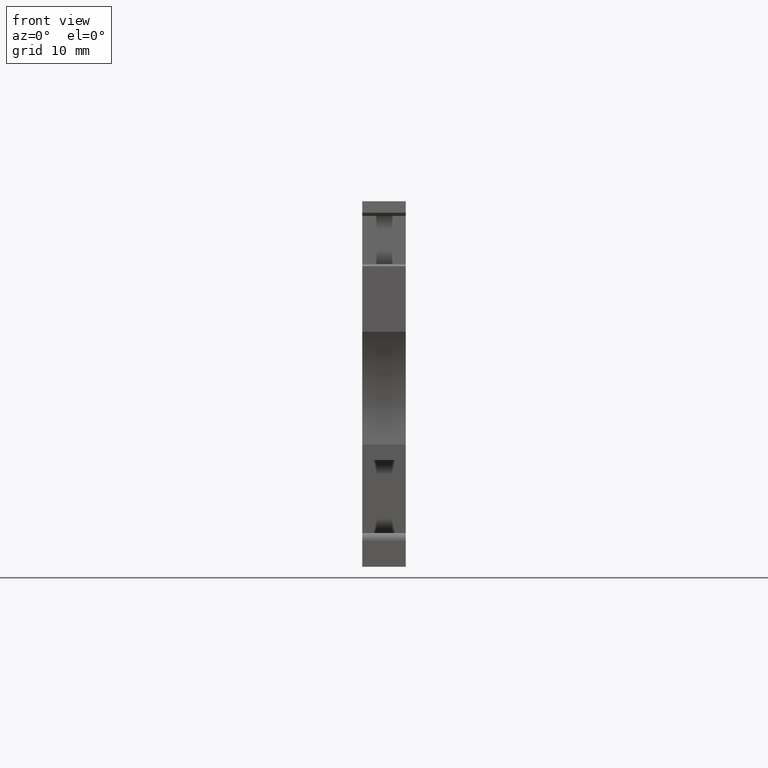
[diagram: clean part render]
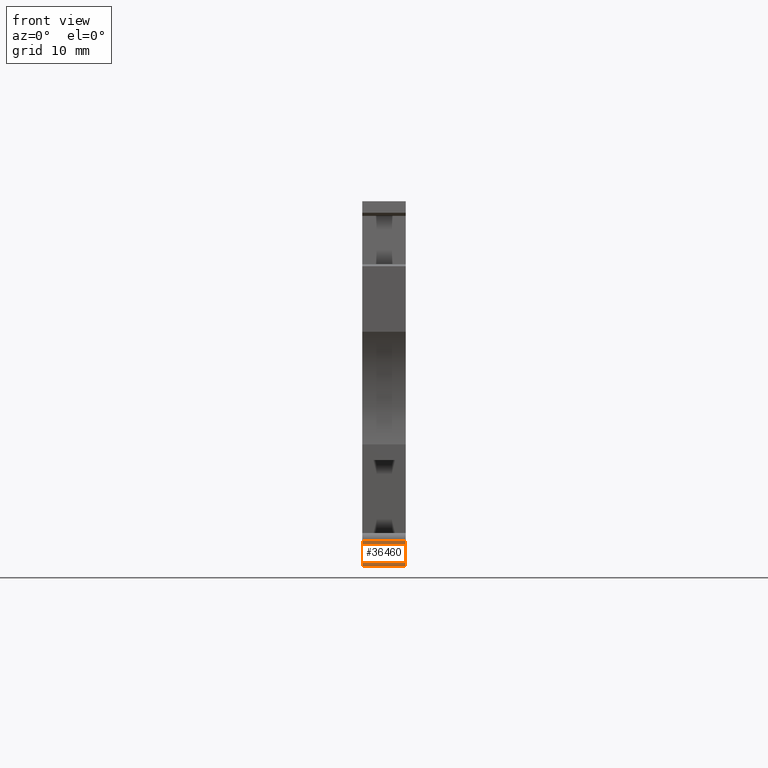
[diagram: same view with one face highlighted and labeled with its STEP entity id]
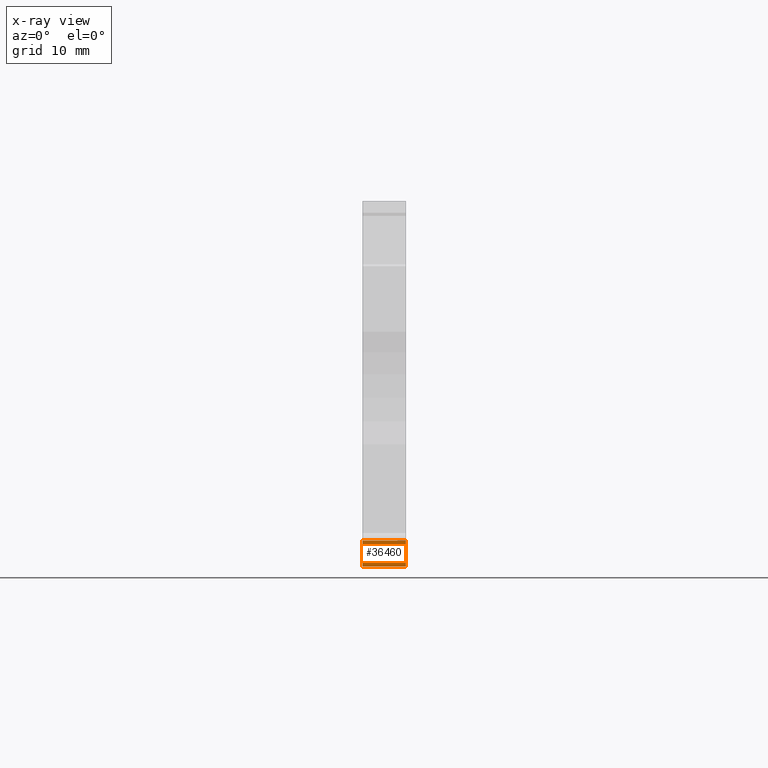
[diagram: x-ray of the same camera — body ghosted, the highlighted face saturated]
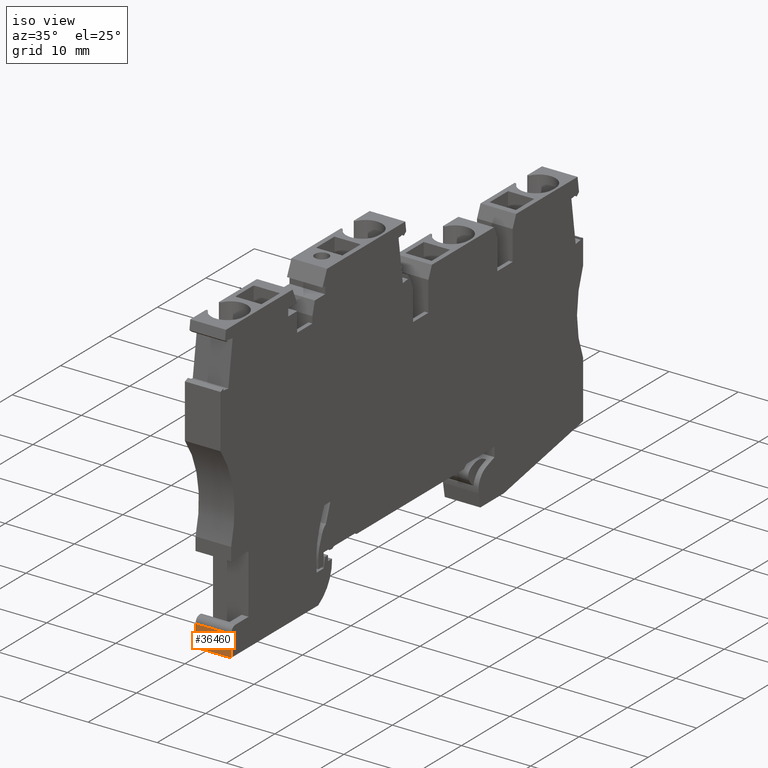
[diagram: same view with one face highlighted and labeled with its STEP entity id]
A machine part, front view. The second image highlights one B-rep face of the part: STEP entity #36460.
The next image is the same camera in x-ray: the body ghosted, the highlighted face saturated — about 0% of this face is hidden behind the body in this view.
A second angle (iso view) of the same face is appended — the face is thin or edge-on in the first view.
In plain terms, the highlighted planar face has unit normal (0, -1, -0).
Its self-contained STEP definition (entity closure, byte-faithful):
#7920=CARTESIAN_POINT('',(-3.10592597299105,5.95482209623501,
-1.11574540516029E-11));
#7930=DIRECTION('',(2.22104378111124E-13,-8.99016273766942E-13,-1.));
#7940=VECTOR('',#7930,1.);
#7950=LINE('',#7920,#7940);
#7960=CARTESIAN_POINT('',(-3.10592597299219,5.95482209623964,
5.14999999996691));
#7970=VERTEX_POINT('',#7960);
#7980=CARTESIAN_POINT('',(-3.10592597299104,5.95482209623501,
-3.30969461049493E-11));
#7990=VERTEX_POINT('',#7980);
#8000=EDGE_CURVE('',#7970,#7990,#7950,.T.);
#36160=CARTESIAN_POINT('',(-2.84710770434429,4.98889916772435,
-2.99995728946891E-6));
#36170=DIRECTION('',(0.965925826288664,0.25881904510403,
-1.81461785600256E-14));
#36180=DIRECTION('',(0.25881904510403,-0.965925826288664,
9.258680102874E-13));
#36190=AXIS2_PLACEMENT_3D('',#36160,#36170,#36180);
#36200=PLANE('',#36190);
#36210=CARTESIAN_POINT('',(-1.51033620124069,6.30304444220337E-11,
5.14999999996891));
#36220=DIRECTION('',(-0.25881904510403,0.965925826288664,
-3.24154886516181E-13));
#36230=VECTOR('',#36220,1.);
#36240=LINE('',#36210,#36230);
#36250=CARTESIAN_POINT('',(-2.30358693315793,2.96045203470086,
5.14999999996791));
#36260=VERTEX_POINT('',#36250);
#36270=EDGE_CURVE('',#36260,#7970,#36240,.T.);
#36280=ORIENTED_EDGE('',*,*,#36270,.F.);
#36290=ORIENTED_EDGE('',*,*,#8000,.F.);
#36300=CARTESIAN_POINT('',(-1.51033620123954,5.84005106121339E-11,
-3.10985530578056E-11));
#36310=DIRECTION('',(0.25881904510403,-0.965925826288664,
3.24154886516181E-13));
#36320=VECTOR('',#36310,1.);
#36330=LINE('',#36300,#36320);
#36340=CARTESIAN_POINT('',(-2.30358693315759,2.96045203469923,
-3.20920582653293E-11));
#36350=VERTEX_POINT('',#36340);
#36360=EDGE_CURVE('',#7990,#36350,#36330,.T.);
#36370=ORIENTED_EDGE('',*,*,#36360,.F.);
#36380=CARTESIAN_POINT('',(-2.30358693316306,2.96045203469776,
-3.20921045507021E-11));
#36390=DIRECTION('',(-7.8466591674356E-14,-3.56588591844637E-13,-1.));
#36400=VECTOR('',#36390,1.);
#36410=LINE('',#36380,#36400);
#36420=EDGE_CURVE('',#36260,#36350,#36410,.T.);
#36430=ORIENTED_EDGE('',*,*,#36420,.T.);
#36440=EDGE_LOOP('',(#36430,#36370,#36290,#36280));
#36450=FACE_OUTER_BOUND('',#36440,.T.);
#36460=ADVANCED_FACE('',(#36450),#36200,.T.);